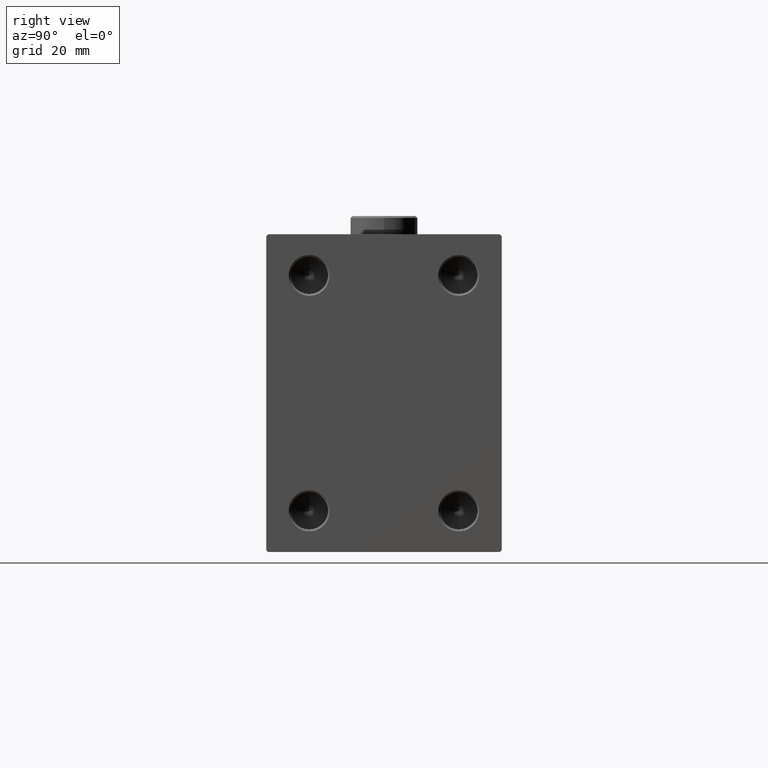
[diagram: clean part render]
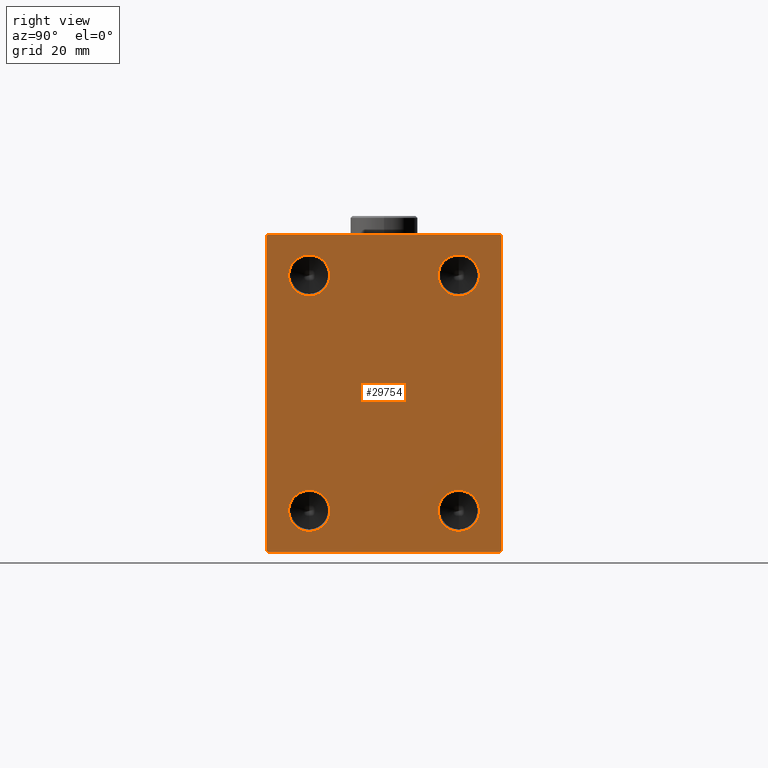
[diagram: same view with one face highlighted and labeled with its STEP entity id]
A machine part, right view. The second image highlights one B-rep face of the part: STEP entity #29754.
In plain terms, the highlighted planar face has unit normal (1, 0, 0).
Its self-contained STEP definition (entity closure, byte-faithful):
#448 = EDGE_CURVE ( 'NONE', #2451, #3602, #13078, .T. ) ;
#801 = VERTEX_POINT ( 'NONE', #19943 ) ;
#1342 = VERTEX_POINT ( 'NONE', #29626 ) ;
#1393 = ORIENTED_EDGE ( 'NONE', *, *, #17572, .T. ) ;
#1512 = FACE_BOUND ( 'NONE', #14624, .T. ) ;
#2062 = VERTEX_POINT ( 'NONE', #34904 ) ;
#2338 = CIRCLE ( 'NONE', #36577, 5.499999999999963585 ) ;
#2376 = CARTESIAN_POINT ( 'NONE',  ( 113.0000000000000000, 36.75000000000002842, -36.75000000000002842 ) ) ;
#2451 = VERTEX_POINT ( 'NONE', #9518 ) ;
#2684 = ORIENTED_EDGE ( 'NONE', *, *, #7624, .F. ) ;
#2990 = VECTOR ( 'NONE', #9290, 1000.000000000000114 ) ;
#3602 = VERTEX_POINT ( 'NONE', #12300 ) ;
#3817 = ORIENTED_EDGE ( 'NONE', *, *, #36171, .F. ) ;
#3866 = AXIS2_PLACEMENT_3D ( 'NONE', #28275, #28748, #4178 ) ;
#4140 = DIRECTION ( 'NONE',  ( 1.000000000000000000, -0.000000000000000000, -0.000000000000000000 ) ) ;
#4178 = DIRECTION ( 'NONE',  ( 0.000000000000000000, 0.000000000000000000, -1.000000000000000000 ) ) ;
#4864 = DIRECTION ( 'NONE',  ( 1.000000000000000000, 0.000000000000000000, 0.000000000000000000 ) ) ;
#5164 = CARTESIAN_POINT ( 'NONE',  ( 113.0000000000000000, 19.99999999999999645, -31.50000000000000000 ) ) ;
#5725 = CARTESIAN_POINT ( 'NONE',  ( 113.0000000000000000, 31.00000000000004263, -42.50000000000000711 ) ) ;
#5955 = CARTESIAN_POINT ( 'NONE',  ( 113.0000000000000000, 36.75000000000001421, 36.75000000000001421 ) ) ;
#6329 = CARTESIAN_POINT ( 'NONE',  ( 113.0000000000000000, 31.00000000000002842, 42.49999999999999289 ) ) ;
#6360 = AXIS2_PLACEMENT_3D ( 'NONE', #15340, #4140, #33235 ) ;
#6681 = EDGE_CURVE ( 'NONE', #21875, #37231, #17778, .T. ) ;
#6755 = CARTESIAN_POINT ( 'NONE',  ( 113.0000000000000000, -20.00000000000000355, 31.50000000000000000 ) ) ;
#7166 = DIRECTION ( 'NONE',  ( 1.000000000000000000, -0.000000000000000000, -0.000000000000000000 ) ) ;
#7624 = EDGE_CURVE ( 'NONE', #2062, #9943, #42925, .T. ) ;
#7655 = CIRCLE ( 'NONE', #3866, 5.499999999999963585 ) ;
#8117 = CARTESIAN_POINT ( 'NONE',  ( 113.0000000000000000, -20.00000000000000355, -26.00000000000003197 ) ) ;
#8180 = CARTESIAN_POINT ( 'NONE',  ( 113.0000000000000000, -36.75000000000001421, 36.75000000000001421 ) ) ;
#8676 = FACE_BOUND ( 'NONE', #41376, .T. ) ;
#8760 = CARTESIAN_POINT ( 'NONE',  ( 113.0000000000000000, 19.99999999999999645, -26.00000000000003197 ) ) ;
#9200 = VERTEX_POINT ( 'NONE', #6329 ) ;
#9290 = DIRECTION ( 'NONE',  ( -0.000000000000000000, -0.7071067811865474617, 0.7071067811865474617 ) ) ;
#9518 = CARTESIAN_POINT ( 'NONE',  ( 113.0000000000000000, -31.50000000000000000, -42.00000000000002842 ) ) ;
#9943 = VERTEX_POINT ( 'NONE', #16420 ) ;
#9974 = ORIENTED_EDGE ( 'NONE', *, *, #448, .T. ) ;
#10197 = CARTESIAN_POINT ( 'NONE',  ( 113.0000000000000000, -36.75000000000023448, -36.74999999999972999 ) ) ;
#10322 = DIRECTION ( 'NONE',  ( 0.000000000000000000, 0.000000000000000000, -1.000000000000000000 ) ) ;
#10679 = DIRECTION ( 'NONE',  ( 1.000000000000000000, -0.000000000000000000, -0.000000000000000000 ) ) ;
#10702 = VECTOR ( 'NONE', #25804, 1000.000000000000000 ) ;
#10854 = EDGE_CURVE ( 'NONE', #33260, #33510, #17859, .T. ) ;
#11008 = ORIENTED_EDGE ( 'NONE', *, *, #32110, .T. ) ;
#11451 = VECTOR ( 'NONE', #42162, 1000.000000000000000 ) ;
#11553 = DIRECTION ( 'NONE',  ( 0.000000000000000000, 0.000000000000000000, -1.000000000000000000 ) ) ;
#12300 = CARTESIAN_POINT ( 'NONE',  ( 113.0000000000000000, -31.00000000000002842, -42.50000000000000711 ) ) ;
#12485 = FACE_BOUND ( 'NONE', #37052, .T. ) ;
#12591 = CARTESIAN_POINT ( 'NONE',  ( 113.0000000000000000, 31.50000000000000000, 42.00000000000002132 ) ) ;
#13078 = LINE ( 'NONE', #10197, #11451 ) ;
#13719 = AXIS2_PLACEMENT_3D ( 'NONE', #37759, #4864, #11553 ) ;
#14490 = CIRCLE ( 'NONE', #41137, 5.499999999999963585 ) ;
#14624 = EDGE_LOOP ( 'NONE', ( #34527, #45929 ) ) ;
#14786 = ORIENTED_EDGE ( 'NONE', *, *, #36362, .T. ) ;
#14835 = LINE ( 'NONE', #26047, #10702 ) ;
#15340 = CARTESIAN_POINT ( 'NONE',  ( 113.0000000000000000, -20.00000000000000355, -31.50000000000000000 ) ) ;
#15863 = VERTEX_POINT ( 'NONE', #8760 ) ;
#15909 = EDGE_CURVE ( 'NONE', #9200, #17959, #31397, .T. ) ;
#16248 = DIRECTION ( 'NONE',  ( 1.000000000000000000, -0.000000000000000000, -0.000000000000000000 ) ) ;
#16339 = ORIENTED_EDGE ( 'NONE', *, *, #36723, .F. ) ;
#16420 = CARTESIAN_POINT ( 'NONE',  ( 113.0000000000000000, -20.00000000000000355, 26.00000000000003197 ) ) ;
#17161 = DIRECTION ( 'NONE',  ( -0.000000000000000000, 0.7071067811865474617, 0.7071067811865474617 ) ) ;
#17572 = EDGE_CURVE ( 'NONE', #22755, #2451, #20269, .T. ) ;
#17717 = DIRECTION ( 'NONE',  ( 1.000000000000000000, -0.000000000000000000, -0.000000000000000000 ) ) ;
#17778 = CIRCLE ( 'NONE', #38294, 5.499999999999963585 ) ;
#17859 = LINE ( 'NONE', #2376, #29316 ) ;
#17959 = VERTEX_POINT ( 'NONE', #46362 ) ;
#18316 = DIRECTION ( 'NONE',  ( 0.000000000000000000, 0.000000000000000000, -1.000000000000000000 ) ) ;
#19840 = EDGE_CURVE ( 'NONE', #3602, #33260, #39397, .T. ) ;
#19943 = CARTESIAN_POINT ( 'NONE',  ( 113.0000000000000000, 19.99999999999999645, -36.99999999999996447 ) ) ;
#20269 = LINE ( 'NONE', #27410, #29310 ) ;
#21875 = VERTEX_POINT ( 'NONE', #34434 ) ;
#22722 = EDGE_CURVE ( 'NONE', #801, #15863, #46968, .T. ) ;
#22755 = VERTEX_POINT ( 'NONE', #34036 ) ;
#22891 = ORIENTED_EDGE ( 'NONE', *, *, #15909, .T. ) ;
#23052 = DIRECTION ( 'NONE',  ( 0.000000000000000000, 0.000000000000000000, -1.000000000000000000 ) ) ;
#23302 = CARTESIAN_POINT ( 'NONE',  ( 113.0000000000000000, 31.50000000000000000, 42.49999999999999289 ) ) ;
#24011 = ORIENTED_EDGE ( 'NONE', *, *, #45234, .F. ) ;
#25237 = CARTESIAN_POINT ( 'NONE',  ( 113.0000000000000000, 19.99999999999999645, 31.50000000000000000 ) ) ;
#25307 = VECTOR ( 'NONE', #37250, 1000.000000000000114 ) ;
#25792 = EDGE_LOOP ( 'NONE', ( #28886, #38147 ) ) ;
#25804 = DIRECTION ( 'NONE',  ( 0.000000000000000000, -1.632680918566406547E-16, 1.000000000000000000 ) ) ;
#26047 = CARTESIAN_POINT ( 'NONE',  ( 113.0000000000000000, 31.50000000000001421, -42.50000000000000711 ) ) ;
#26394 = DIRECTION ( 'NONE',  ( 1.000000000000000000, -0.000000000000000000, -0.000000000000000000 ) ) ;
#27359 = CARTESIAN_POINT ( 'NONE',  ( 113.0000000000000000, 31.50000000000001421, -42.00000000000003553 ) ) ;
#27410 = CARTESIAN_POINT ( 'NONE',  ( 113.0000000000000000, -31.50000000000000000, 42.49999999999998579 ) ) ;
#27731 = CARTESIAN_POINT ( 'NONE',  ( 113.0000000000000000, -31.50000000000000000, -42.50000000000000711 ) ) ;
#28251 = CARTESIAN_POINT ( 'NONE',  ( 113.0000000000000000, 19.99999999999999645, 26.00000000000003197 ) ) ;
#28275 = CARTESIAN_POINT ( 'NONE',  ( 113.0000000000000000, 19.99999999999999645, 31.50000000000000000 ) ) ;
#28547 = VERTEX_POINT ( 'NONE', #28251 ) ;
#28642 = ORIENTED_EDGE ( 'NONE', *, *, #41328, .T. ) ;
#28748 = DIRECTION ( 'NONE',  ( 1.000000000000000000, -0.000000000000000000, -0.000000000000000000 ) ) ;
#28807 = DIRECTION ( 'NONE',  ( 0.000000000000000000, 0.000000000000000000, -1.000000000000000000 ) ) ;
#28886 = ORIENTED_EDGE ( 'NONE', *, *, #43413, .F. ) ;
#29310 = VECTOR ( 'NONE', #41958, 1000.000000000000000 ) ;
#29316 = VECTOR ( 'NONE', #17161, 1000.000000000000114 ) ;
#29536 = ORIENTED_EDGE ( 'NONE', *, *, #10854, .T. ) ;
#29626 = CARTESIAN_POINT ( 'NONE',  ( 113.0000000000000000, 19.99999999999999645, 36.99999999999996447 ) ) ;
#29754 = ADVANCED_FACE ( 'NONE', ( #12485, #8676, #44223, #1512, #29908 ), #30149, .T. ) ;
#29908 = FACE_OUTER_BOUND ( 'NONE', #46846, .T. ) ;
#30149 = PLANE ( 'NONE',  #13719 ) ;
#30558 = DIRECTION ( 'NONE',  ( 0.000000000000000000, 0.000000000000000000, -1.000000000000000000 ) ) ;
#31397 = LINE ( 'NONE', #23302, #43855 ) ;
#31464 = LINE ( 'NONE', #5955, #2990 ) ;
#31594 = AXIS2_PLACEMENT_3D ( 'NONE', #25237, #33100, #18316 ) ;
#31670 = VECTOR ( 'NONE', #38456, 1000.000000000000000 ) ;
#32110 = EDGE_CURVE ( 'NONE', #39490, #9200, #31464, .T. ) ;
#32216 = CARTESIAN_POINT ( 'NONE',  ( 113.0000000000000000, -20.00000000000000355, 31.50000000000000000 ) ) ;
#32284 = AXIS2_PLACEMENT_3D ( 'NONE', #32216, #7166, #46987 ) ;
#32514 = AXIS2_PLACEMENT_3D ( 'NONE', #36655, #10679, #28807 ) ;
#33100 = DIRECTION ( 'NONE',  ( 1.000000000000000000, -0.000000000000000000, -0.000000000000000000 ) ) ;
#33235 = DIRECTION ( 'NONE',  ( 0.000000000000000000, 0.000000000000000000, -1.000000000000000000 ) ) ;
#33260 = VERTEX_POINT ( 'NONE', #5725 ) ;
#33510 = VERTEX_POINT ( 'NONE', #27359 ) ;
#34036 = CARTESIAN_POINT ( 'NONE',  ( 113.0000000000000000, -31.50000000000000000, 42.00000000000001421 ) ) ;
#34434 = CARTESIAN_POINT ( 'NONE',  ( 113.0000000000000000, -20.00000000000000355, -36.99999999999996447 ) ) ;
#34527 = ORIENTED_EDGE ( 'NONE', *, *, #35629, .F. ) ;
#34904 = CARTESIAN_POINT ( 'NONE',  ( 113.0000000000000000, -20.00000000000000355, 36.99999999999996447 ) ) ;
#35209 = DIRECTION ( 'NONE',  ( 0.000000000000000000, -1.000000000000000000, -1.101411730778925171E-16 ) ) ;
#35629 = EDGE_CURVE ( 'NONE', #15863, #801, #14490, .T. ) ;
#36171 = EDGE_CURVE ( 'NONE', #9943, #2062, #2338, .T. ) ;
#36362 = EDGE_CURVE ( 'NONE', #33510, #39490, #14835, .T. ) ;
#36577 = AXIS2_PLACEMENT_3D ( 'NONE', #6755, #17717, #10322 ) ;
#36655 = CARTESIAN_POINT ( 'NONE',  ( 113.0000000000000000, 19.99999999999999645, -31.50000000000000000 ) ) ;
#36723 = EDGE_CURVE ( 'NONE', #28547, #1342, #7655, .T. ) ;
#37022 = LINE ( 'NONE', #8180, #25307 ) ;
#37052 = EDGE_LOOP ( 'NONE', ( #24011, #16339 ) ) ;
#37231 = VERTEX_POINT ( 'NONE', #8117 ) ;
#37250 = DIRECTION ( 'NONE',  ( 0.000000000000000000, -0.7071067811865474617, -0.7071067811865474617 ) ) ;
#37759 = CARTESIAN_POINT ( 'NONE',  ( 113.0000000000000000, 0.000000000000000000, 0.000000000000000000 ) ) ;
#38147 = ORIENTED_EDGE ( 'NONE', *, *, #6681, .F. ) ;
#38167 = CARTESIAN_POINT ( 'NONE',  ( 113.0000000000000000, -20.00000000000000355, -31.50000000000000000 ) ) ;
#38294 = AXIS2_PLACEMENT_3D ( 'NONE', #38167, #16248, #30558 ) ;
#38456 = DIRECTION ( 'NONE',  ( 0.000000000000000000, 1.000000000000000000, 0.000000000000000000 ) ) ;
#39397 = LINE ( 'NONE', #27731, #31670 ) ;
#39490 = VERTEX_POINT ( 'NONE', #12591 ) ;
#39824 = CIRCLE ( 'NONE', #6360, 5.499999999999963585 ) ;
#41076 = ORIENTED_EDGE ( 'NONE', *, *, #19840, .T. ) ;
#41137 = AXIS2_PLACEMENT_3D ( 'NONE', #5164, #26394, #23052 ) ;
#41328 = EDGE_CURVE ( 'NONE', #17959, #22755, #37022, .T. ) ;
#41376 = EDGE_LOOP ( 'NONE', ( #2684, #3817 ) ) ;
#41958 = DIRECTION ( 'NONE',  ( 0.000000000000000000, 0.000000000000000000, -1.000000000000000000 ) ) ;
#42162 = DIRECTION ( 'NONE',  ( -0.000000000000000000, 0.7071067811865426878, -0.7071067811865524577 ) ) ;
#42925 = CIRCLE ( 'NONE', #32284, 5.499999999999963585 ) ;
#42991 = CIRCLE ( 'NONE', #31594, 5.499999999999963585 ) ;
#43413 = EDGE_CURVE ( 'NONE', #37231, #21875, #39824, .T. ) ;
#43855 = VECTOR ( 'NONE', #35209, 1000.000000000000000 ) ;
#44223 = FACE_BOUND ( 'NONE', #25792, .T. ) ;
#45234 = EDGE_CURVE ( 'NONE', #1342, #28547, #42991, .T. ) ;
#45929 = ORIENTED_EDGE ( 'NONE', *, *, #22722, .F. ) ;
#46362 = CARTESIAN_POINT ( 'NONE',  ( 113.0000000000000000, -31.00000000000002842, 42.49999999999998579 ) ) ;
#46846 = EDGE_LOOP ( 'NONE', ( #22891, #28642, #1393, #9974, #41076, #29536, #14786, #11008 ) ) ;
#46968 = CIRCLE ( 'NONE', #32514, 5.499999999999963585 ) ;
#46987 = DIRECTION ( 'NONE',  ( 0.000000000000000000, 0.000000000000000000, -1.000000000000000000 ) ) ;